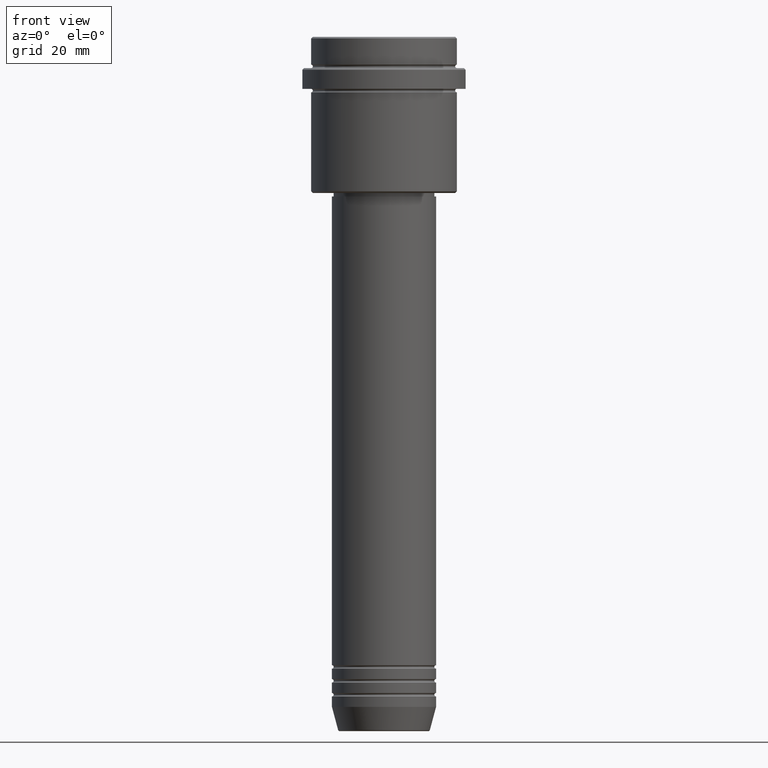
[diagram: clean part render]
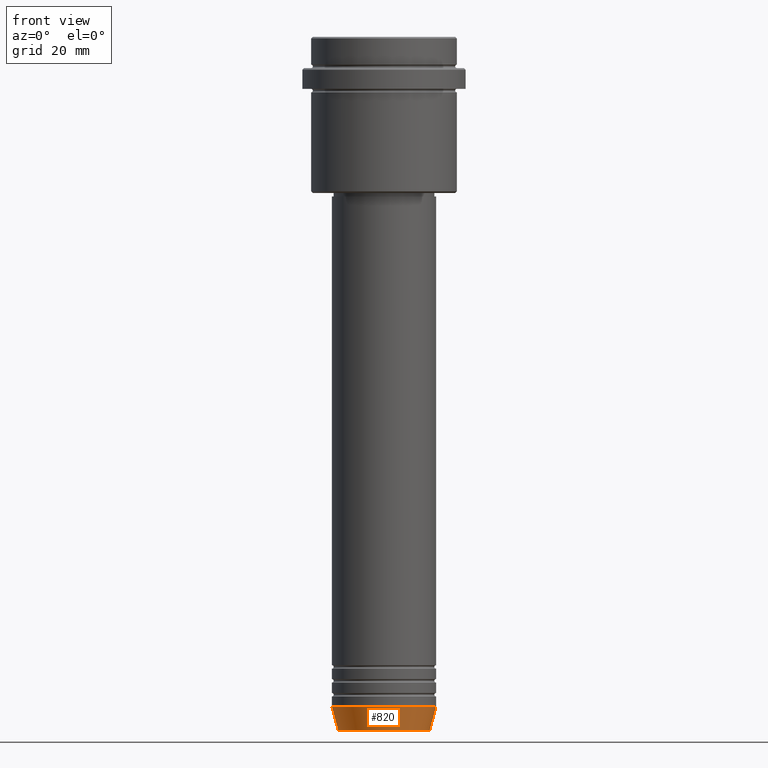
[diagram: same view with one face highlighted and labeled with its STEP entity id]
A machine part, front view. The second image highlights one B-rep face of the part: STEP entity #820.
In plain terms, the highlighted conical surface has half-angle 15 deg.
Its self-contained STEP definition (entity closure, byte-faithful):
#51 = VERTEX_POINT ( 'NONE', #1389 ) ;
#114 = CARTESIAN_POINT ( 'NONE',  ( 15.00000000000000000, 0.000000000000000000, -193.0000000000000000 ) ) ;
#166 = ORIENTED_EDGE ( 'NONE', *, *, #803, .T. ) ;
#279 = DIRECTION ( 'NONE',  ( -0.000000000000000000, -0.000000000000000000, 1.000000000000000000 ) ) ;
#336 = VECTOR ( 'NONE', #682, 1000.000000000000000 ) ;
#452 = DIRECTION ( 'NONE',  ( 0.2588190451025213501, 0.000000000000000000, 0.9659258262890680902 ) ) ;
#454 = EDGE_LOOP ( 'NONE', ( #612, #166, #1324, #704 ) ) ;
#463 = VECTOR ( 'NONE', #452, 1000.000000000000000 ) ;
#471 = VERTEX_POINT ( 'NONE', #845 ) ;
#514 = AXIS2_PLACEMENT_3D ( 'NONE', #699, #1144, #687 ) ;
#549 = CARTESIAN_POINT ( 'NONE',  ( 15.00000000000000000, 0.000000000000000000, -193.0000000000000000 ) ) ;
#568 = CARTESIAN_POINT ( 'NONE',  ( -15.00000000000000000, 1.836970198721029589E-15, -193.0000000000000000 ) ) ;
#569 = CARTESIAN_POINT ( 'NONE',  ( -13.22365507213719660, 1.728200442216588780E-15, -199.6294095225512706 ) ) ;
#583 = DIRECTION ( 'NONE',  ( 1.000000000000000000, 0.000000000000000000, 0.000000000000000000 ) ) ;
#587 = VERTEX_POINT ( 'NONE', #569 ) ;
#609 = EDGE_CURVE ( 'NONE', #471, #708, #1108, .T. ) ;
#612 = ORIENTED_EDGE ( 'NONE', *, *, #1257, .F. ) ;
#646 = CONICAL_SURFACE ( 'NONE', #514, 15.00000000000000000, 0.2617993877991500740 ) ;
#648 = AXIS2_PLACEMENT_3D ( 'NONE', #686, #279, #904 ) ;
#682 = DIRECTION ( 'NONE',  ( -0.2588190451025213501, 3.169619151431772337E-17, 0.9659258262890680902 ) ) ;
#686 = CARTESIAN_POINT ( 'NONE',  ( 0.000000000000000000, 0.000000000000000000, -193.0000000000000000 ) ) ;
#687 = DIRECTION ( 'NONE',  ( 1.000000000000000000, 0.000000000000000000, 0.000000000000000000 ) ) ;
#699 = CARTESIAN_POINT ( 'NONE',  ( 0.000000000000000000, 0.000000000000000000, -193.0000000000000000 ) ) ;
#704 = ORIENTED_EDGE ( 'NONE', *, *, #1302, .F. ) ;
#705 = LINE ( 'NONE', #568, #336 ) ;
#708 = VERTEX_POINT ( 'NONE', #114 ) ;
#747 = CIRCLE ( 'NONE', #648, 15.00000000000000000 ) ;
#803 = EDGE_CURVE ( 'NONE', #587, #471, #812, .T. ) ;
#812 = CIRCLE ( 'NONE', #1342, 13.22365507213719482 ) ;
#820 = ADVANCED_FACE ( 'NONE', ( #1243 ), #646, .T. ) ;
#845 = CARTESIAN_POINT ( 'NONE',  ( 13.22365507213719482, 0.000000000000000000, -199.6294095225512706 ) ) ;
#904 = DIRECTION ( 'NONE',  ( 1.000000000000000000, 0.000000000000000000, 0.000000000000000000 ) ) ;
#1108 = LINE ( 'NONE', #549, #463 ) ;
#1144 = DIRECTION ( 'NONE',  ( -0.000000000000000000, -0.000000000000000000, 1.000000000000000000 ) ) ;
#1243 = FACE_OUTER_BOUND ( 'NONE', #454, .T. ) ;
#1251 = CARTESIAN_POINT ( 'NONE',  ( 0.000000000000000000, 0.000000000000000000, -199.6294095225512706 ) ) ;
#1257 = EDGE_CURVE ( 'NONE', #587, #51, #705, .T. ) ;
#1264 = DIRECTION ( 'NONE',  ( -0.000000000000000000, -0.000000000000000000, 1.000000000000000000 ) ) ;
#1302 = EDGE_CURVE ( 'NONE', #51, #708, #747, .T. ) ;
#1324 = ORIENTED_EDGE ( 'NONE', *, *, #609, .T. ) ;
#1342 = AXIS2_PLACEMENT_3D ( 'NONE', #1251, #1264, #583 ) ;
#1389 = CARTESIAN_POINT ( 'NONE',  ( -15.00000000000000000, 1.836970198721029589E-15, -193.0000000000000000 ) ) ;